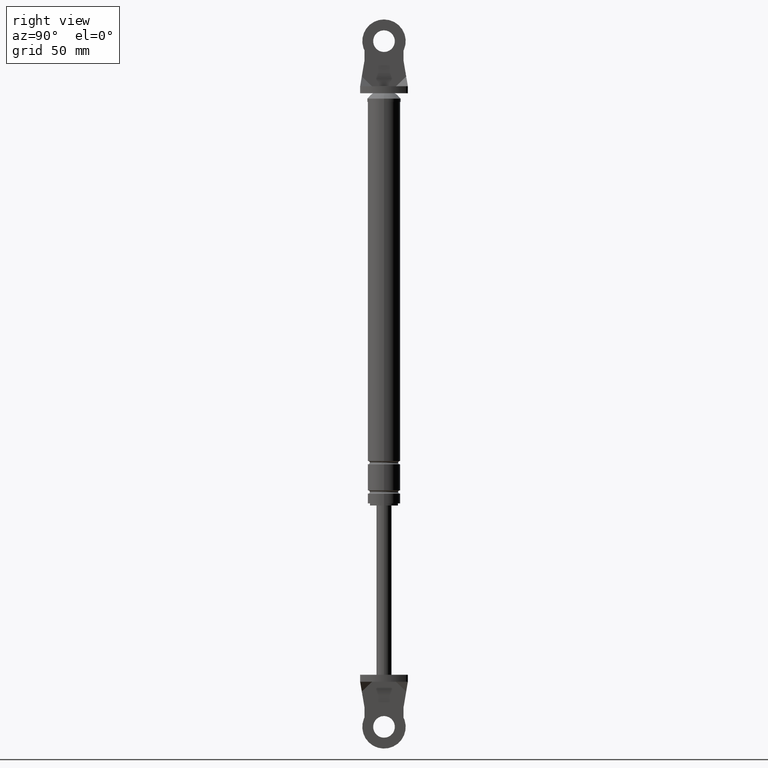
[diagram: clean part render]
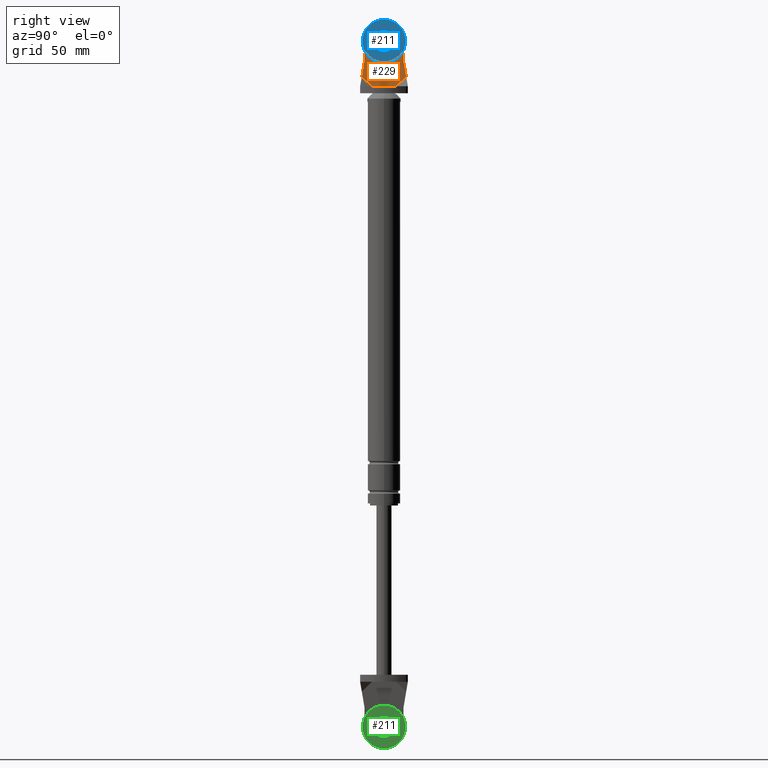
[diagram: same view with three faces highlighted in distinct colors, each labeled with its STEP entity id]
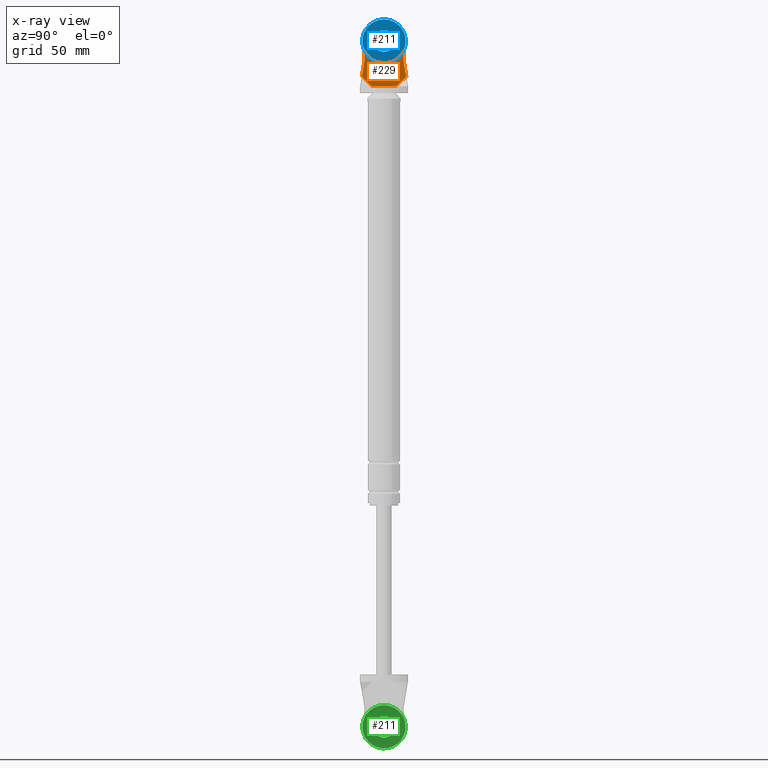
[diagram: x-ray of the same camera — body ghosted, the three highlighted faces saturated]
A machine part, right view with three faces highlighted in distinct colors.
The next image is the same camera in x-ray (body ghosted, the three faces saturated) — at least one of them is partly hidden behind the body in this view.
Their STEP definitions:

[orange] entity #229 — the highlighted planar face has unit normal (1, 0, 0).
#229=ADVANCED_FACE('',(#540,#541),#539,.T.);
#539=PLANE('',#1231);
#540=FACE_OUTER_BOUND('',#1232,.T.);
#541=FACE_BOUND('',#1233,.T.);
#1228=CARTESIAN_POINT('',(3.20000000000E+000,-1.22847457627E+001,2.37800000000E+001));
#1229=DIRECTION('',(1.00000000000E+000,0.00000000000E+000,0.00000000000E+000));
#1230=DIRECTION('',(0.00000000000E+000,0.00000000000E+000,-1.00000000000E+000));
#1231=AXIS2_PLACEMENT_3D('',#1228,#1229,#1230);
#1232=EDGE_LOOP('',(#1731,#1732,#1733,#1734,#1735,#1736,#1737,#1738));
#1233=EDGE_LOOP('',(#1739,#1740));
#1731=ORIENTED_EDGE('',*,*,#2081,.F.);
#1732=ORIENTED_EDGE('',*,*,#2051,.F.);
#1733=ORIENTED_EDGE('',*,*,#2082,.F.);
#1734=ORIENTED_EDGE('',*,*,#2077,.T.);
#1735=ORIENTED_EDGE('',*,*,#2074,.T.);
#1736=ORIENTED_EDGE('',*,*,#2071,.F.);
#1737=ORIENTED_EDGE('',*,*,#2068,.T.);
#1738=ORIENTED_EDGE('',*,*,#2065,.T.);
#1739=ORIENTED_EDGE('',*,*,#2083,.T.);
#1740=ORIENTED_EDGE('',*,*,#2084,.T.);
#2051=EDGE_CURVE('',#2566,#2573,#2574,.T.);
#2065=EDGE_CURVE('',#2665,#2658,#2666,.T.);
#2068=EDGE_CURVE('',#2685,#2665,#2686,.T.);
#2071=EDGE_CURVE('',#2685,#2705,#2706,.T.);
#2074=EDGE_CURVE('',#2725,#2705,#2726,.T.);
#2077=EDGE_CURVE('',#2744,#2725,#2745,.T.);
#2081=EDGE_CURVE('',#2573,#2658,#2769,.T.);
#2082=EDGE_CURVE('',#2744,#2566,#2775,.T.);
#2083=EDGE_CURVE('',#2781,#2782,#2783,.T.);
#2084=EDGE_CURVE('',#2782,#2781,#2789,.T.);
#2566=VERTEX_POINT('',#3760);
#2573=VERTEX_POINT('',#3763);
#2574=LINE('',#3764,#3765);
#2658=VERTEX_POINT('',#3811);
#2665=VERTEX_POINT('',#3814);
#2666=LINE('',#3815,#3816);
#2685=VERTEX_POINT('',#3825);
#2686=LINE('',#3826,#3827);
#2705=VERTEX_POINT('',#3837);
#2706=CIRCLE('',#3841,9.00000000000E+000);
#2725=VERTEX_POINT('',#3849);
#2726=LINE('',#3850,#3851);
#2744=VERTEX_POINT('',#3859);
#2745=LINE('',#3860,#3861);
#2769=LINE('',#3870,#3871);
#2775=LINE('',#3873,#3874);
#2781=VERTEX_POINT('',#3876);
#2782=VERTEX_POINT('',#3877);
#2783=CIRCLE('',#3881,5.00000000000E+000);
#2789=CIRCLE('',#3885,5.00000000000E+000);
#3760=CARTESIAN_POINT('',(3.20000000000E+000,-5.50000000000E+000,2.08000000000E+001));
#3763=CARTESIAN_POINT('',(3.20000000000E+000,5.50000000000E+000,2.08000000000E+001));
#3764=CARTESIAN_POINT('',(3.20000000000E+000,-5.50000000000E+000,2.08000000000E+001));
#3765=VECTOR('',#3766,1.10000000000E+001);
#3766=DIRECTION('',(0.00000000000E+000,1.00000000000E+000,0.00000000000E+000));
#3811=CARTESIAN_POINT('',(3.20000000000E+000,1.02372881356E+001,1.63000000000E+001));
#3814=CARTESIAN_POINT('',(3.20000000000E+000,9.00000000000E+000,9.00000000000E+000));
#3815=CARTESIAN_POINT('',(3.20000000000E+000,9.00000000000E+000,9.00000000000E+000));
#3816=VECTOR('',#3817,7.40411250120E+000);
#3817=DIRECTION('',(0.00000000000E+000,1.67108230108E-001,9.85938557634E-001));
#3825=CARTESIAN_POINT('',(3.20000000000E+000,9.00000000000E+000,-9.98396631623E-015));
#3826=CARTESIAN_POINT('',(3.20000000000E+000,9.00000000000E+000,-9.98396631623E-015));
#3827=VECTOR('',#3828,9.00000000000E+000);
#3828=DIRECTION('',(0.00000000000E+000,0.00000000000E+000,1.00000000000E+000));
#3837=CARTESIAN_POINT('',(3.20000000000E+000,-9.00000000000E+000,1.40239463254E-015));
#3838=CARTESIAN_POINT('',(3.20000000000E+000,3.19744231092E-014,-8.88178419700E-015));
#3839=DIRECTION('',(-1.00000000000E+000,-0.00000000000E+000,-0.00000000000E+000));
#3840=DIRECTION('',(-0.00000000000E+000,-0.00000000000E+000,1.00000000000E+000));
#3841=AXIS2_PLACEMENT_3D('',#3838,#3839,#3840);
#3849=CARTESIAN_POINT('',(3.20000000000E+000,-9.00000000000E+000,9.00000000000E+000));
#3850=CARTESIAN_POINT('',(3.20000000000E+000,-9.00000000000E+000,9.00000000000E+000));
#3851=VECTOR('',#3852,9.00000000000E+000);
#3852=DIRECTION('',(0.00000000000E+000,0.00000000000E+000,-1.00000000000E+000));
#3859=CARTESIAN_POINT('',(3.20000000000E+000,-1.02372881356E+001,1.63000000000E+001));
#3860=CARTESIAN_POINT('',(3.20000000000E+000,-1.02372881356E+001,1.63000000000E+001));
#3861=VECTOR('',#3862,7.40411250120E+000);
#3862=DIRECTION('',(0.00000000000E+000,1.67108230108E-001,-9.85938557634E-001));
#3870=CARTESIAN_POINT('',(3.20000000000E+000,5.50000000000E+000,2.08000000000E+001));
#3871=VECTOR('',#3872,6.53390380092E+000);
#3872=DIRECTION('',(0.00000000000E+000,7.25031815578E-001,-6.88715374011E-001));
#3873=CARTESIAN_POINT('',(3.20000000000E+000,-1.02372881356E+001,1.63000000000E+001));
#3874=VECTOR('',#3875,6.53390380092E+000);
#3875=DIRECTION('',(0.00000000000E+000,7.25031815578E-001,6.88715374011E-001));
#3876=CARTESIAN_POINT('',(3.20000000000E+000,3.19744231092E-014,-5.00000000000E+000));
#3877=CARTESIAN_POINT('',(3.20000000000E+000,3.25665420557E-014,5.00000000000E+000));
#3878=CARTESIAN_POINT('',(3.20000000000E+000,3.19744231092E-014,-8.88178419700E-015));
#3879=DIRECTION('',(-1.00000000000E+000,0.00000000000E+000,-0.00000000000E+000));
#3880=DIRECTION('',(0.00000000000E+000,-1.22460635382E-016,-1.00000000000E+000));
#3881=AXIS2_PLACEMENT_3D('',#3878,#3879,#3880);
#3882=CARTESIAN_POINT('',(3.20000000000E+000,3.19744231092E-014,-8.88178419700E-015));
#3883=DIRECTION('',(-1.00000000000E+000,0.00000000000E+000,-0.00000000000E+000));
#3884=DIRECTION('',(0.00000000000E+000,-1.22460635382E-016,-1.00000000000E+000));
#3885=AXIS2_PLACEMENT_3D('',#3882,#3883,#3884);

[blue] entity #211 — the highlighted planar face has unit normal (1, 0, 0).
#211=ADVANCED_FACE('',(#358,#359),#357,.T.);
#357=PLANE('',#1139);
#358=FACE_OUTER_BOUND('',#1140,.T.);
#359=FACE_BOUND('',#1141,.T.);
#1136=CARTESIAN_POINT('',(-6.70000310000E+001,2.07846096925E+001,2.66000000003E+002));
#1137=DIRECTION('',(1.00000000000E+000,0.00000000000E+000,0.00000000000E+000));
#1138=DIRECTION('',(0.00000000000E+000,-1.00000000000E+000,0.00000000000E+000));
#1139=AXIS2_PLACEMENT_3D('',#1136,#1137,#1138);
#1140=EDGE_LOOP('',(#1634,#1635,#1636));
#1141=EDGE_LOOP('',(#1637,#1638,#1639));
#1634=ORIENTED_EDGE('',*,*,#2018,.F.);
#1635=ORIENTED_EDGE('',*,*,#2019,.F.);
#1636=ORIENTED_EDGE('',*,*,#2020,.F.);
#1637=ORIENTED_EDGE('',*,*,#2021,.T.);
#1638=ORIENTED_EDGE('',*,*,#2022,.T.);
#1639=ORIENTED_EDGE('',*,*,#2023,.T.);
#2018=EDGE_CURVE('',#2346,#2347,#2348,.T.);
#2019=EDGE_CURVE('',#2354,#2346,#2355,.T.);
#2020=EDGE_CURVE('',#2347,#2354,#2361,.T.);
#2021=EDGE_CURVE('',#2367,#2368,#2369,.T.);
#2022=EDGE_CURVE('',#2368,#2375,#2376,.T.);
#2023=EDGE_CURVE('',#2375,#2367,#2382,.T.);
#2346=VERTEX_POINT('',#3628);
#2347=VERTEX_POINT('',#3629);
#2348=CIRCLE('',#3633,1.00000000008E+001);
#2354=VERTEX_POINT('',#3634);
#2355=CIRCLE('',#3638,1.00000000008E+001);
#2361=CIRCLE('',#3642,1.00000000008E+001);
#2367=VERTEX_POINT('',#3643);
#2368=VERTEX_POINT('',#3644);
#2369=CIRCLE('',#3648,5.00000000174E+000);
#2375=VERTEX_POINT('',#3649);
#2376=CIRCLE('',#3653,5.00000000174E+000);
#2382=CIRCLE('',#3657,5.00000000174E+000);
#3628=CARTESIAN_POINT('',(-6.70000310000E+001,-9.96913532293E+000,2.52214926173E+002));
#3629=CARTESIAN_POINT('',(-6.70000310000E+001,8.49285803892E-014,2.63000000002E+002));
#3630=CARTESIAN_POINT('',(-6.70000310000E+001,7.41160910422E-010,2.53000000001E+002));
#3631=DIRECTION('',(-1.00000000000E+000,1.50728876034E-015,-1.11705783034E-025));
#3632=DIRECTION('',(-2.23406478870E-025,-7.41070316284E-011,1.00000000000E+000));
#3633=AXIS2_PLACEMENT_3D('',#3630,#3631,#3632);
#3634=CARTESIAN_POINT('',(-6.70000310000E+001,9.96917333893E+000,2.53784590957E+002));
#3635=CARTESIAN_POINT('',(-6.70000310000E+001,7.41160910422E-010,2.53000000001E+002));
#3636=DIRECTION('',(-1.00000000000E+000,1.50728876034E-015,-1.11705783034E-025));
#3637=DIRECTION('',(-2.23406478870E-025,-7.41070316284E-011,1.00000000000E+000));
#3638=AXIS2_PLACEMENT_3D('',#3635,#3636,#3637);
#3639=CARTESIAN_POINT('',(-6.70000310000E+001,7.41160910422E-010,2.53000000001E+002));
#3640=DIRECTION('',(-1.00000000000E+000,1.50728876034E-015,-1.11705783034E-025));
#3641=DIRECTION('',(-2.23406478870E-025,-7.41070316284E-011,1.00000000000E+000));
#3642=AXIS2_PLACEMENT_3D('',#3639,#3640,#3641);
#3643=CARTESIAN_POINT('',(-6.70000310000E+001,5.84504371335E-014,2.58000000003E+002));
#3644=CARTESIAN_POINT('',(-6.70000310000E+001,4.98458657258E+000,2.53392296744E+002));
#3645=CARTESIAN_POINT('',(-6.70000310000E+001,1.61135238486E-009,2.53000000002E+002));
#3646=DIRECTION('',(-1.00000000000E+000,0.00000000000E+000,0.00000000000E+000));
#3647=DIRECTION('',(0.00000000000E+000,-3.22258220222E-010,1.00000000000E+000));
#3648=AXIS2_PLACEMENT_3D('',#3645,#3646,#3647);
#3649=CARTESIAN_POINT('',(-6.70000310000E+001,-4.98456766232E+000,2.52607463098E+002));
#3650=CARTESIAN_POINT('',(-6.70000310000E+001,1.61135238486E-009,2.53000000002E+002));
#3651=DIRECTION('',(-1.00000000000E+000,0.00000000000E+000,0.00000000000E+000));
#3652=DIRECTION('',(0.00000000000E+000,-3.22258220222E-010,1.00000000000E+000));
#3653=AXIS2_PLACEMENT_3D('',#3650,#3651,#3652);
#3654=CARTESIAN_POINT('',(-6.70000310000E+001,1.61135238486E-009,2.53000000002E+002));
#3655=DIRECTION('',(-1.00000000000E+000,0.00000000000E+000,0.00000000000E+000));
#3656=DIRECTION('',(0.00000000000E+000,-3.22258220222E-010,1.00000000000E+000));
#3657=AXIS2_PLACEMENT_3D('',#3654,#3655,#3656);

[green] entity #211 — the highlighted planar face has unit normal (1, 0, 0).
#211=ADVANCED_FACE('',(#358,#359),#357,.T.);
#357=PLANE('',#1139);
#358=FACE_OUTER_BOUND('',#1140,.T.);
#359=FACE_BOUND('',#1141,.T.);
#1136=CARTESIAN_POINT('',(-6.70000310000E+001,2.07846096925E+001,2.66000000003E+002));
#1137=DIRECTION('',(1.00000000000E+000,0.00000000000E+000,0.00000000000E+000));
#1138=DIRECTION('',(0.00000000000E+000,-1.00000000000E+000,0.00000000000E+000));
#1139=AXIS2_PLACEMENT_3D('',#1136,#1137,#1138);
#1140=EDGE_LOOP('',(#1634,#1635,#1636));
#1141=EDGE_LOOP('',(#1637,#1638,#1639));
#1634=ORIENTED_EDGE('',*,*,#2018,.F.);
#1635=ORIENTED_EDGE('',*,*,#2019,.F.);
#1636=ORIENTED_EDGE('',*,*,#2020,.F.);
#1637=ORIENTED_EDGE('',*,*,#2021,.T.);
#1638=ORIENTED_EDGE('',*,*,#2022,.T.);
#1639=ORIENTED_EDGE('',*,*,#2023,.T.);
#2018=EDGE_CURVE('',#2346,#2347,#2348,.T.);
#2019=EDGE_CURVE('',#2354,#2346,#2355,.T.);
#2020=EDGE_CURVE('',#2347,#2354,#2361,.T.);
#2021=EDGE_CURVE('',#2367,#2368,#2369,.T.);
#2022=EDGE_CURVE('',#2368,#2375,#2376,.T.);
#2023=EDGE_CURVE('',#2375,#2367,#2382,.T.);
#2346=VERTEX_POINT('',#3628);
#2347=VERTEX_POINT('',#3629);
#2348=CIRCLE('',#3633,1.00000000008E+001);
#2354=VERTEX_POINT('',#3634);
#2355=CIRCLE('',#3638,1.00000000008E+001);
#2361=CIRCLE('',#3642,1.00000000008E+001);
#2367=VERTEX_POINT('',#3643);
#2368=VERTEX_POINT('',#3644);
#2369=CIRCLE('',#3648,5.00000000174E+000);
#2375=VERTEX_POINT('',#3649);
#2376=CIRCLE('',#3653,5.00000000174E+000);
#2382=CIRCLE('',#3657,5.00000000174E+000);
#3628=CARTESIAN_POINT('',(-6.70000310000E+001,-9.96913532293E+000,2.52214926173E+002));
#3629=CARTESIAN_POINT('',(-6.70000310000E+001,8.49285803892E-014,2.63000000002E+002));
#3630=CARTESIAN_POINT('',(-6.70000310000E+001,7.41160910422E-010,2.53000000001E+002));
#3631=DIRECTION('',(-1.00000000000E+000,1.50728876034E-015,-1.11705783034E-025));
#3632=DIRECTION('',(-2.23406478870E-025,-7.41070316284E-011,1.00000000000E+000));
#3633=AXIS2_PLACEMENT_3D('',#3630,#3631,#3632);
#3634=CARTESIAN_POINT('',(-6.70000310000E+001,9.96917333893E+000,2.53784590957E+002));
#3635=CARTESIAN_POINT('',(-6.70000310000E+001,7.41160910422E-010,2.53000000001E+002));
#3636=DIRECTION('',(-1.00000000000E+000,1.50728876034E-015,-1.11705783034E-025));
#3637=DIRECTION('',(-2.23406478870E-025,-7.41070316284E-011,1.00000000000E+000));
#3638=AXIS2_PLACEMENT_3D('',#3635,#3636,#3637);
#3639=CARTESIAN_POINT('',(-6.70000310000E+001,7.41160910422E-010,2.53000000001E+002));
#3640=DIRECTION('',(-1.00000000000E+000,1.50728876034E-015,-1.11705783034E-025));
#3641=DIRECTION('',(-2.23406478870E-025,-7.41070316284E-011,1.00000000000E+000));
#3642=AXIS2_PLACEMENT_3D('',#3639,#3640,#3641);
#3643=CARTESIAN_POINT('',(-6.70000310000E+001,5.84504371335E-014,2.58000000003E+002));
#3644=CARTESIAN_POINT('',(-6.70000310000E+001,4.98458657258E+000,2.53392296744E+002));
#3645=CARTESIAN_POINT('',(-6.70000310000E+001,1.61135238486E-009,2.53000000002E+002));
#3646=DIRECTION('',(-1.00000000000E+000,0.00000000000E+000,0.00000000000E+000));
#3647=DIRECTION('',(0.00000000000E+000,-3.22258220222E-010,1.00000000000E+000));
#3648=AXIS2_PLACEMENT_3D('',#3645,#3646,#3647);
#3649=CARTESIAN_POINT('',(-6.70000310000E+001,-4.98456766232E+000,2.52607463098E+002));
#3650=CARTESIAN_POINT('',(-6.70000310000E+001,1.61135238486E-009,2.53000000002E+002));
#3651=DIRECTION('',(-1.00000000000E+000,0.00000000000E+000,0.00000000000E+000));
#3652=DIRECTION('',(0.00000000000E+000,-3.22258220222E-010,1.00000000000E+000));
#3653=AXIS2_PLACEMENT_3D('',#3650,#3651,#3652);
#3654=CARTESIAN_POINT('',(-6.70000310000E+001,1.61135238486E-009,2.53000000002E+002));
#3655=DIRECTION('',(-1.00000000000E+000,0.00000000000E+000,0.00000000000E+000));
#3656=DIRECTION('',(0.00000000000E+000,-3.22258220222E-010,1.00000000000E+000));
#3657=AXIS2_PLACEMENT_3D('',#3654,#3655,#3656);